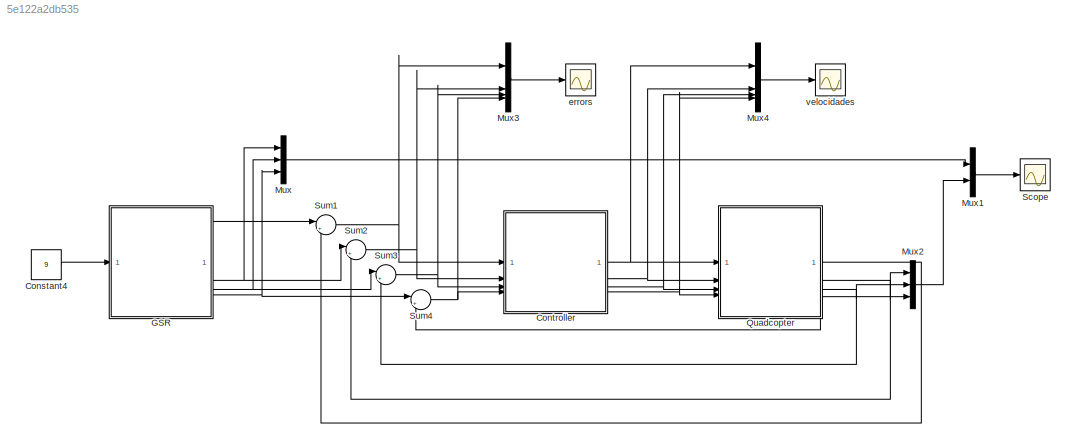
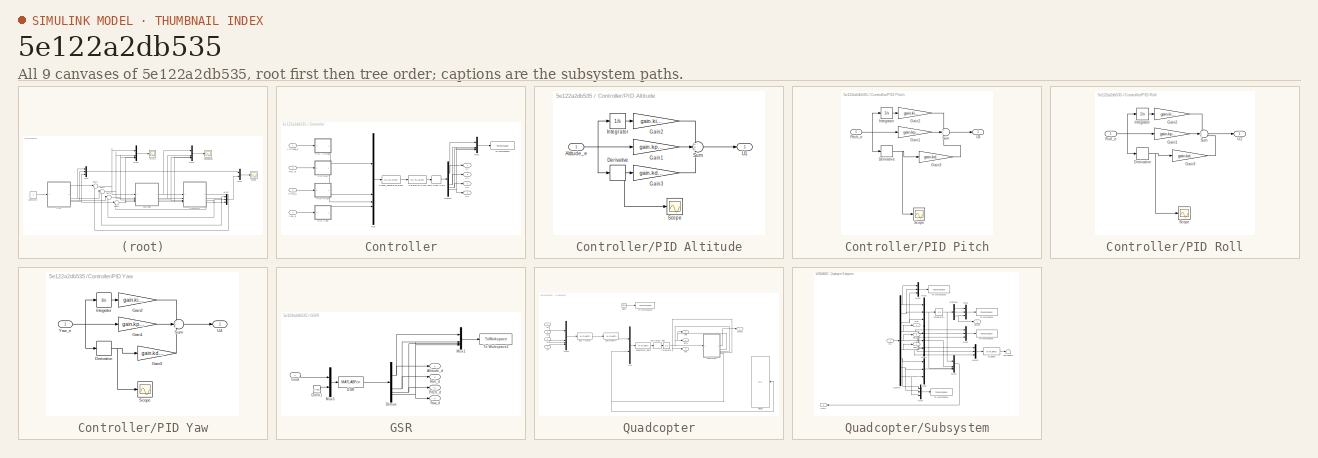
[diagram: thumbnail index - all 9 canvases of the model, root first then tree order]
MODEL slx_5e122a2db535
KIND model
CONFIG AbsTol = auto
CONFIG EnableMultiTasking = off
CONFIG FixedStep = step_size
CONFIG MaxStep = auto
CONFIG MinStep = auto
CONFIG RelTol = 1e-3
CONFIG SampleTimeConstraint = Unconstrained
CONFIG SolverName = FixedStepAuto
CONFIG StartTime = 0.0
CONFIG StopTime = 500
BLOCK [Constant] Constant4
  Value = 9
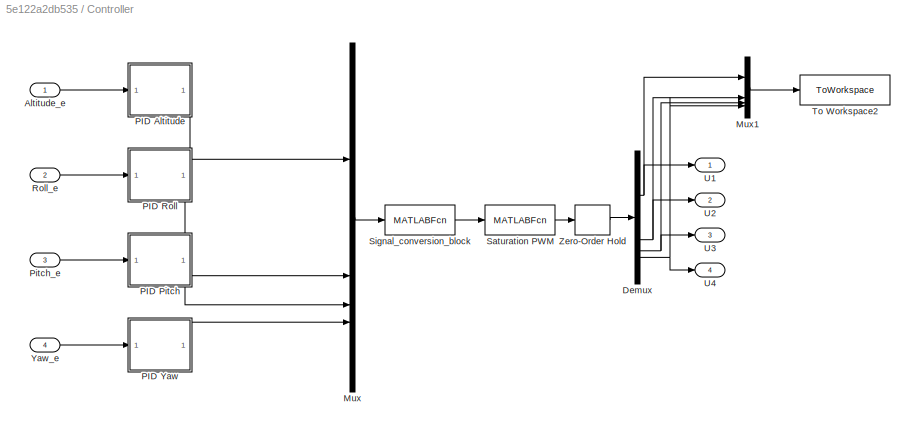
BLOCK [SubSystem] Controller
BLOCK [Inport] Controller/Altitude_e
BLOCK [Demux] Controller/Demux
BLOCK [Mux] Controller/Mux
  DisplayOption = bar
BLOCK [Mux] Controller/Mux1
  DisplayOption = bar
BLOCK [SubSystem] Controller/PID Altitude
BLOCK [Inport] Controller/PID Altitude/Altitude_e
BLOCK [Derivative] Controller/PID Altitude/Derivative
BLOCK [Gain] Controller/PID Altitude/Gain1
  Gain = gain.kp_a
BLOCK [Gain] Controller/PID Altitude/Gain2
  Gain = gain.ki_a
BLOCK [Gain] Controller/PID Altitude/Gain3
  Gain = gain.kd_a
BLOCK [Integrator] Controller/PID Altitude/Integrator
BLOCK [Scope] Controller/PID Altitude/Scope
  Floating = off
  NumInputPorts = 1
  ScopeSpecificationString = Simulink.scopes.TimeScopeBlockCfg('CurrentConfiguration', extmgr.ConfigurationSet(extmgr.Configuration('Core','General UI',true),extmgr.Configuration('Core','Source UI',true),extmgr.Configuration('Sources','WiredSimulink',true,'DataLoggingVariableName','ScopeData1'),extmgr.Configuration('Visuals','Time Domain',true,'SerializedDisplays',{struct('MinYLimReal','-0.50513','MaxYLimReal','0.94054','YLab...<+1369ch>
BLOCK [Sum] Controller/PID Altitude/Sum
  Inputs = +++
BLOCK [Outport] Controller/PID Altitude/U1
BLOCK [SubSystem] Controller/PID Pitch
BLOCK [Derivative] Controller/PID Pitch/Derivative
BLOCK [Gain] Controller/PID Pitch/Gain1
  Gain = gain.kp_p
BLOCK [Gain] Controller/PID Pitch/Gain2
  Gain = gain.ki_p
BLOCK [Gain] Controller/PID Pitch/Gain3
  Gain = gain.kd_p
BLOCK [Integrator] Controller/PID Pitch/Integrator
BLOCK [Inport] Controller/PID Pitch/Pitch_e
BLOCK [Scope] Controller/PID Pitch/Scope
  Floating = off
  NumInputPorts = 1
  ScopeSpecificationString = Simulink.scopes.TimeScopeBlockCfg('CurrentConfiguration', extmgr.ConfigurationSet(extmgr.Configuration('Core','General UI',true),extmgr.Configuration('Core','Source UI',true),extmgr.Configuration('Sources','WiredSimulink',true,'DataLoggingVariableName','ScopeData2'),extmgr.Configuration('Visuals','Time Domain',true,'SerializedDisplays',{struct('MinYLimReal','-1187.96218','MaxYLimReal','688.82626',...<+1389ch>
BLOCK [Sum] Controller/PID Pitch/Sum
  Inputs = +++
BLOCK [Outport] Controller/PID Pitch/U3
BLOCK [SubSystem] Controller/PID Roll
BLOCK [Derivative] Controller/PID Roll/Derivative
BLOCK [Gain] Controller/PID Roll/Gain1
  Gain = gain.kp_r
BLOCK [Gain] Controller/PID Roll/Gain2
  Gain = gain.ki_r
BLOCK [Gain] Controller/PID Roll/Gain3
  Gain = gain.kd_r
BLOCK [Integrator] Controller/PID Roll/Integrator
BLOCK [Inport] Controller/PID Roll/Roll_e
BLOCK [Scope] Controller/PID Roll/Scope
  Floating = off
  NumInputPorts = 1
  ScopeSpecificationString = Simulink.scopes.TimeScopeBlockCfg('CurrentConfiguration', extmgr.ConfigurationSet(extmgr.Configuration('Core','General UI',true),extmgr.Configuration('Core','Source UI',true),extmgr.Configuration('Sources','WiredSimulink',true,'DataLoggingVariableName','ScopeData1'),extmgr.Configuration('Visuals','Time Domain',true,'SerializedDisplays',{struct('MinYLimReal','-1187.9623','MaxYLimReal','688.82627','...<+1385ch>
BLOCK [Sum] Controller/PID Roll/Sum
  Inputs = +++
BLOCK [Outport] Controller/PID Roll/U2
BLOCK [SubSystem] Controller/PID Yaw
BLOCK [Derivative] Controller/PID Yaw/Derivative
BLOCK [Gain] Controller/PID Yaw/Gain1
  Gain = gain.kp_y
BLOCK [Gain] Controller/PID Yaw/Gain2
  Gain = gain.ki_y
BLOCK [Gain] Controller/PID Yaw/Gain3
  Gain = gain.kd_y
BLOCK [Integrator] Controller/PID Yaw/Integrator
BLOCK [Scope] Controller/PID Yaw/Scope
  Floating = off
  NumInputPorts = 1
  ScopeSpecificationString = Simulink.scopes.TimeScopeBlockCfg('CurrentConfiguration', extmgr.ConfigurationSet(extmgr.Configuration('Core','General UI',true),extmgr.Configuration('Core','Source UI',true),extmgr.Configuration('Sources','WiredSimulink',true,'DataLoggingVariableName','ScopeData3'),extmgr.Configuration('Visuals','Time Domain',true,'SerializedDisplays',{struct('MinYLimReal','-0.54501','MaxYLimReal','0.5769','YLabe...<+1413ch>
BLOCK [Sum] Controller/PID Yaw/Sum
  Inputs = +++
BLOCK [Outport] Controller/PID Yaw/U4
BLOCK [Inport] Controller/PID Yaw/Yaw_e
BLOCK [Inport] Controller/Pitch_e
  Port = 3
BLOCK [Inport] Controller/Roll_e
  Port = 2
BLOCK [MATLABFcn] Controller/Saturation PWM
  MATLABFcn = Saturation_PWM
  OutputDimensions = 4
BLOCK [MATLABFcn] Controller/Signal_conversion_block
  MATLABFcn = Signal_conversion_block
  OutputDimensions = 4
BLOCK [ToWorkspace] Controller/To Workspace2
  FixptAsFi = on
  MaxDataPoints = inf
  SampleTime = -1
  VariableName = pwm
BLOCK [Outport] Controller/U1
BLOCK [Outport] Controller/U2
  Port = 2
BLOCK [Outport] Controller/U3
  Port = 3
BLOCK [Outport] Controller/U4
  Port = 4
BLOCK [Inport] Controller/Yaw_e
  Port = 4
BLOCK [ZeroOrderHold] Controller/Zero-Order Hold
  SampleTime = -1
BLOCK [SubSystem] GSR
BLOCK [Outport] GSR/Altitude_d
BLOCK [Clock] GSR/Clock1
BLOCK [Demux] GSR/Demux
BLOCK [MATLABFcn] GSR/GSR
  MATLABFcn = GSR
  OutputDimensions = 4
BLOCK [Inport] GSR/Goal
BLOCK [Mux] GSR/Mux1
  DisplayOption = bar
BLOCK [Mux] GSR/Mux5
  DisplayOption = bar
  Inputs = 2
BLOCK [Outport] GSR/Pitch_d
  Port = 3
BLOCK [Outport] GSR/Roll_d
  Port = 2
BLOCK [ToWorkspace] GSR/To Workspace2
  FixptAsFi = on
  MaxDataPoints = inf
  SampleTime = -1
  VariableName = signals_d
BLOCK [Outport] GSR/Yaw_d
  Port = 4
BLOCK [Mux] Mux
  DisplayOption = bar
  Inputs = 3
BLOCK [Mux] Mux1
  DisplayOption = bar
  Inputs = 2
BLOCK [Mux] Mux2
  DisplayOption = bar
  Inputs = 3
BLOCK [Mux] Mux3
  DisplayOption = bar
BLOCK [Mux] Mux4
  DisplayOption = bar
BLOCK [SubSystem] Quadcopter
BLOCK [Outport] Quadcopter/Altitude
BLOCK [Clock] Quadcopter/Clock
BLOCK [Display] Quadcopter/Display
  Decimation = 1
  NameLocation = top
BLOCK [MATLABFcn] Quadcopter/ESC + Motor
  MATLABFcn = ESC_Motors
  OutputDimensions = 4
BLOCK [Integrator] Quadcopter/Integrator
  InitialCondition = [init.dx init.dy init.dz init.phi init.theta init.psi init.p init.q init.r]
BLOCK [Mux] Quadcopter/Mux
  DisplayOption = bar
  Inputs = 2
BLOCK [Mux] Quadcopter/Mux5
  DisplayOption = bar
BLOCK [Outport] Quadcopter/Pitch
  Port = 3
BLOCK [MATLABFcn] Quadcopter/Quadcopter_block
  MATLABFcn = Quadcopter_block
  OutputDimensions = 9
BLOCK [Outport] Quadcopter/Roll
  Port = 2
BLOCK [MATLABFcn] Quadcopter/Saturation F
  MATLABFcn = Saturation_F
  OutputDimensions = 4
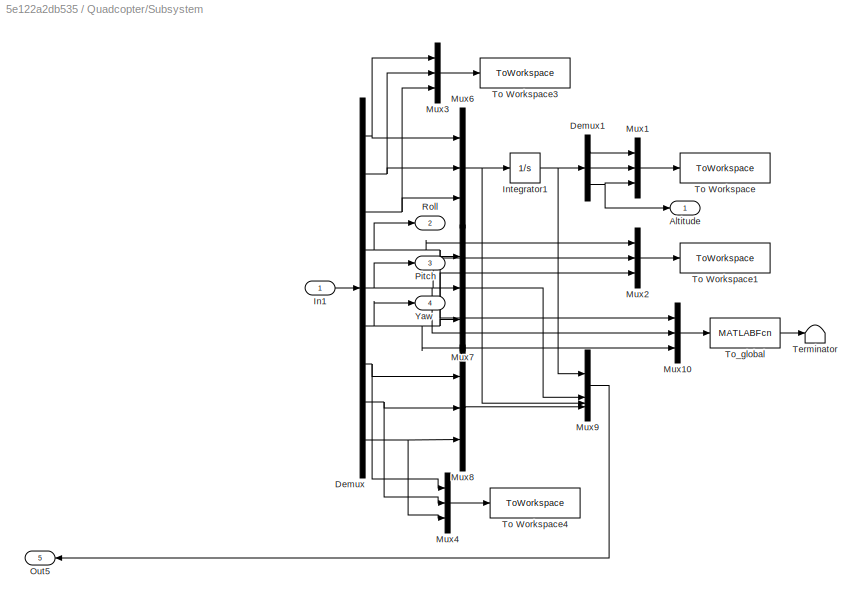
BLOCK [SubSystem] Quadcopter/Subsystem
BLOCK [Outport] Quadcopter/Subsystem/Altitude
BLOCK [Demux] Quadcopter/Subsystem/Demux
  Outputs = 9
BLOCK [Demux] Quadcopter/Subsystem/Demux1
  Outputs = 3
BLOCK [Inport] Quadcopter/Subsystem/In1
BLOCK [Integrator] Quadcopter/Subsystem/Integrator1
  InitialCondition = [init.x init.y init.z]
BLOCK [Mux] Quadcopter/Subsystem/Mux1
  DisplayOption = bar
  Inputs = 3
BLOCK [Mux] Quadcopter/Subsystem/Mux10
  DisplayOption = bar
  Inputs = 3
BLOCK [Mux] Quadcopter/Subsystem/Mux2
  DisplayOption = bar
  Inputs = 3
BLOCK [Mux] Quadcopter/Subsystem/Mux3
  DisplayOption = bar
  Inputs = 3
BLOCK [Mux] Quadcopter/Subsystem/Mux4
  DisplayOption = bar
  Inputs = 3
BLOCK [Mux] Quadcopter/Subsystem/Mux6
  DisplayOption = bar
  Inputs = 3
BLOCK [Mux] Quadcopter/Subsystem/Mux7
  DisplayOption = bar
  Inputs = 3
BLOCK [Mux] Quadcopter/Subsystem/Mux8
  DisplayOption = bar
  Inputs = 3
BLOCK [Mux] Quadcopter/Subsystem/Mux9
  DisplayOption = bar
BLOCK [Outport] Quadcopter/Subsystem/Out5
  Port = 5
BLOCK [Outport] Quadcopter/Subsystem/Pitch
  Port = 3
BLOCK [Outport] Quadcopter/Subsystem/Roll
  Port = 2
BLOCK [Terminator] Quadcopter/Subsystem/Terminator
BLOCK [ToWorkspace] Quadcopter/Subsystem/To Workspace
  FixptAsFi = on
  MaxDataPoints = inf
  SampleTime = -1
  VariableName = position
BLOCK [ToWorkspace] Quadcopter/Subsystem/To Workspace1
  FixptAsFi = on
  MaxDataPoints = inf
  SampleTime = -1
  VariableName = orientation
BLOCK [ToWorkspace] Quadcopter/Subsystem/To Workspace3
  FixptAsFi = on
  MaxDataPoints = inf
  SampleTime = -1
  VariableName = linear_velocity
BLOCK [ToWorkspace] Quadcopter/Subsystem/To Workspace4
  FixptAsFi = on
  MaxDataPoints = inf
  SampleTime = -1
  VariableName = angular_velocity
BLOCK [MATLABFcn] Quadcopter/Subsystem/To_global
  MATLABFcn = To_global
  OutputDimensions = 1
BLOCK [Outport] Quadcopter/Subsystem/Yaw
  Port = 4
BLOCK [ToWorkspace] Quadcopter/To Workspace2
  FixptAsFi = on
  MaxDataPoints = inf
  SampleTime = -1
  VariableName = time
BLOCK [Inport] Quadcopter/U1
BLOCK [Inport] Quadcopter/U2
  Port = 2
BLOCK [Inport] Quadcopter/U3
  Port = 3
BLOCK [Inport] Quadcopter/U4
  Port = 4
BLOCK [Outport] Quadcopter/Yaw
  Port = 4
BLOCK [ZeroOrderHold] Quadcopter/Zero-Order Hold
  SampleTime = -1
BLOCK [Scope] Scope
  Floating = off
  NumInputPorts = 1
  ScopeSpecificationString = Simulink.scopes.TimeScopeBlockCfg('CurrentConfiguration', extmgr.ConfigurationSet(extmgr.Configuration('Core','General UI',true),extmgr.Configuration('Core','Source UI',true),extmgr.Configuration('Sources','WiredSimulink',true),extmgr.Configuration('Visuals','Time Domain',true,'SerializedDisplays',{struct('MinYLimReal','-164.08693','MaxYLimReal','145.44735','YLabelReal','','MinYLimMag',' 0.00000',...<+1587ch>
BLOCK [Sum] Sum1
  Inputs = |+-
BLOCK [Sum] Sum2
  Inputs = |+-
BLOCK [Sum] Sum3
  Inputs = |+-
BLOCK [Sum] Sum4
  Inputs = |+-
BLOCK [Scope] errors
  Floating = off
  NumInputPorts = 1
  ScopeSpecificationString = Simulink.scopes.TimeScopeBlockCfg('CurrentConfiguration', extmgr.ConfigurationSet(extmgr.Configuration('Core','General UI',true),extmgr.Configuration('Core','Source UI',true),extmgr.Configuration('Sources','WiredSimulink',true,'DataLoggingVariableName','ScopeData1'),extmgr.Configuration('Visuals','Time Domain',true,'SerializedDisplays',{struct('MinYLimReal','-119.4498','MaxYLimReal','69.76333','YL...<+1558ch>
BLOCK [Scope] velocidades
  Floating = off
  NumInputPorts = 1
  ScopeSpecificationString = Simulink.scopes.TimeScopeBlockCfg('CurrentConfiguration', extmgr.ConfigurationSet(extmgr.Configuration('Core','General UI',true),extmgr.Configuration('Core','Source UI',true),extmgr.Configuration('Sources','WiredSimulink',true,'DataLoggingVariableName','ScopeData2'),extmgr.Configuration('Visuals','Time Domain',true,'SerializedDisplays',{struct('MinYLimReal','875.00000','MaxYLimReal','2125.00000','...<+1617ch>
LINE Constant4:1 -> GSR:1
LINE Controller/Altitude_e:1 -> Controller/PID Altitude:1
NET Controller/Demux:1 -> Controller/Mux1:1, Controller/U1:1
NET Controller/Demux:2 -> Controller/Mux1:2, Controller/U2:1
NET Controller/Demux:3 -> Controller/Mux1:3, Controller/U3:1
NET Controller/Demux:4 -> Controller/Mux1:4, Controller/U4:1
LINE Controller/Mux1:1 -> Controller/To Workspace2:1
LINE Controller/Mux:1 -> Controller/Signal_conversion_block:1
NET Controller/PID Altitude/Altitude_e:1 -> Controller/PID Altitude/Derivative:1, Controller/PID Altitude/Gain1:1, Controller/PID Altitude/Integrator:1
NET Controller/PID Altitude/Derivative:1 -> Controller/PID Altitude/Gain3:1, Controller/PID Altitude/Scope:1
LINE Controller/PID Altitude/Gain1:1 -> Controller/PID Altitude/Sum:2
LINE Controller/PID Altitude/Gain2:1 -> Controller/PID Altitude/Sum:1
LINE Controller/PID Altitude/Gain3:1 -> Controller/PID Altitude/Sum:3
LINE Controller/PID Altitude/Integrator:1 -> Controller/PID Altitude/Gain2:1
LINE Controller/PID Altitude/Sum:1 -> Controller/PID Altitude/U1:1
LINE Controller/PID Altitude:1 -> Controller/Mux:1
NET Controller/PID Pitch/Derivative:1 -> Controller/PID Pitch/Gain3:1, Controller/PID Pitch/Scope:1
LINE Controller/PID Pitch/Gain1:1 -> Controller/PID Pitch/Sum:2
LINE Controller/PID Pitch/Gain2:1 -> Controller/PID Pitch/Sum:1
LINE Controller/PID Pitch/Gain3:1 -> Controller/PID Pitch/Sum:3
LINE Controller/PID Pitch/Integrator:1 -> Controller/PID Pitch/Gain2:1
NET Controller/PID Pitch/Pitch_e:1 -> Controller/PID Pitch/Derivative:1, Controller/PID Pitch/Gain1:1, Controller/PID Pitch/Integrator:1
LINE Controller/PID Pitch/Sum:1 -> Controller/PID Pitch/U3:1
LINE Controller/PID Pitch:1 -> Controller/Mux:3
NET Controller/PID Roll/Derivative:1 -> Controller/PID Roll/Gain3:1, Controller/PID Roll/Scope:1
LINE Controller/PID Roll/Gain1:1 -> Controller/PID Roll/Sum:2
LINE Controller/PID Roll/Gain2:1 -> Controller/PID Roll/Sum:1
LINE Controller/PID Roll/Gain3:1 -> Controller/PID Roll/Sum:3
LINE Controller/PID Roll/Integrator:1 -> Controller/PID Roll/Gain2:1
NET Controller/PID Roll/Roll_e:1 -> Controller/PID Roll/Derivative:1, Controller/PID Roll/Gain1:1, Controller/PID Roll/Integrator:1
LINE Controller/PID Roll/Sum:1 -> Controller/PID Roll/U2:1
LINE Controller/PID Roll:1 -> Controller/Mux:2
NET Controller/PID Yaw/Derivative:1 -> Controller/PID Yaw/Gain3:1, Controller/PID Yaw/Scope:1
LINE Controller/PID Yaw/Gain1:1 -> Controller/PID Yaw/Sum:2
LINE Controller/PID Yaw/Gain2:1 -> Controller/PID Yaw/Sum:1
LINE Controller/PID Yaw/Gain3:1 -> Controller/PID Yaw/Sum:3
LINE Controller/PID Yaw/Integrator:1 -> Controller/PID Yaw/Gain2:1
LINE Controller/PID Yaw/Sum:1 -> Controller/PID Yaw/U4:1
NET Controller/PID Yaw/Yaw_e:1 -> Controller/PID Yaw/Derivative:1, Controller/PID Yaw/Gain1:1, Controller/PID Yaw/Integrator:1
LINE Controller/PID Yaw:1 -> Controller/Mux:4
LINE Controller/Pitch_e:1 -> Controller/PID Pitch:1
LINE Controller/Roll_e:1 -> Controller/PID Roll:1
LINE Controller/Saturation PWM:1 -> Controller/Zero-Order Hold:1
LINE Controller/Signal_conversion_block:1 -> Controller/Saturation PWM:1
LINE Controller/Yaw_e:1 -> Controller/PID Yaw:1
LINE Controller/Zero-Order Hold:1 -> Controller/Demux:1
NET Controller:1 -> Mux4:1, Quadcopter:1
NET Controller:2 -> Mux4:2, Quadcopter:2
NET Controller:3 -> Mux4:3, Quadcopter:3
NET Controller:4 -> Mux4:4, Quadcopter:4
LINE GSR/Clock1:1 -> GSR/Mux5:2
NET GSR/Demux:1 -> GSR/Altitude_d:1, GSR/Mux1:1
NET GSR/Demux:2 -> GSR/Mux1:2, GSR/Roll_d:1
NET GSR/Demux:3 -> GSR/Mux1:3, GSR/Pitch_d:1
NET GSR/Demux:4 -> GSR/Mux1:4, GSR/Yaw_d:1
LINE GSR/GSR:1 -> GSR/Demux:1
LINE GSR/Goal:1 -> GSR/Mux5:1
LINE GSR/Mux1:1 -> GSR/To Workspace2:1
LINE GSR/Mux5:1 -> GSR/GSR:1
LINE GSR:1 -> Sum1:1
NET GSR:2 -> Mux:1, Sum2:1
NET GSR:3 -> Mux:2, Sum3:1
NET GSR:4 -> Mux:3, Sum4:1
LINE Mux1:1 -> Scope:1
LINE Mux2:1 -> Mux1:2
LINE Mux3:1 -> errors:1
LINE Mux4:1 -> velocidades:1
LINE Mux:1 -> Mux1:1
LINE Quadcopter/Clock:1 -> Quadcopter/To Workspace2:1
LINE Quadcopter/ESC + Motor:1 -> Quadcopter/Saturation F:1
LINE Quadcopter/Integrator:1 -> Quadcopter/Subsystem:1
LINE Quadcopter/Mux5:1 -> Quadcopter/ESC + Motor:1
LINE Quadcopter/Mux:1 -> Quadcopter/Quadcopter_block:1
LINE Quadcopter/Quadcopter_block:1 -> Quadcopter/Zero-Order Hold:1
LINE Quadcopter/Saturation F:1 -> Quadcopter/Mux:1
LINE Quadcopter/Subsystem/Demux1:1 -> Quadcopter/Subsystem/Mux1:1
LINE Quadcopter/Subsystem/Demux1:2 -> Quadcopter/Subsystem/Mux1:2
NET Quadcopter/Subsystem/Demux1:3 -> Quadcopter/Subsystem/Altitude:1, Quadcopter/Subsystem/Mux1:3
NET Quadcopter/Subsystem/Demux:1 -> Quadcopter/Subsystem/Mux3:1, Quadcopter/Subsystem/Mux6:1
NET Quadcopter/Subsystem/Demux:2 -> Quadcopter/Subsystem/Mux3:2, Quadcopter/Subsystem/Mux6:2
NET Quadcopter/Subsystem/Demux:3 -> Quadcopter/Subsystem/Mux3:3, Quadcopter/Subsystem/Mux6:3
NET Quadcopter/Subsystem/Demux:4 -> Quadcopter/Subsystem/Mux10:1, Quadcopter/Subsystem/Mux2:1, Quadcopter/Subsystem/Mux7:1, Quadcopter/Subsystem/Roll:1
NET Quadcopter/Subsystem/Demux:5 -> Quadcopter/Subsystem/Mux10:2, Quadcopter/Subsystem/Mux2:2, Quadcopter/Subsystem/Mux7:2, Quadcopter/Subsystem/Pitch:1
NET Quadcopter/Subsystem/Demux:6 -> Quadcopter/Subsystem/Mux10:3, Quadcopter/Subsystem/Mux2:3, Quadcopter/Subsystem/Mux7:3, Quadcopter/Subsystem/Yaw:1
NET Quadcopter/Subsystem/Demux:7 -> Quadcopter/Subsystem/Mux4:1, Quadcopter/Subsystem/Mux8:1
NET Quadcopter/Subsystem/Demux:8 -> Quadcopter/Subsystem/Mux4:2, Quadcopter/Subsystem/Mux8:2
NET Quadcopter/Subsystem/Demux:9 -> Quadcopter/Subsystem/Mux4:3, Quadcopter/Subsystem/Mux8:3
LINE Quadcopter/Subsystem/In1:1 -> Quadcopter/Subsystem/Demux:1
NET Quadcopter/Subsystem/Integrator1:1 -> Quadcopter/Subsystem/Demux1:1, Quadcopter/Subsystem/Mux9:1
LINE Quadcopter/Subsystem/Mux10:1 -> Quadcopter/Subsystem/To_global:1
LINE Quadcopter/Subsystem/Mux1:1 -> Quadcopter/Subsystem/To Workspace:1
LINE Quadcopter/Subsystem/Mux2:1 -> Quadcopter/Subsystem/To Workspace1:1
LINE Quadcopter/Subsystem/Mux3:1 -> Quadcopter/Subsystem/To Workspace3:1
LINE Quadcopter/Subsystem/Mux4:1 -> Quadcopter/Subsystem/To Workspace4:1
NET Quadcopter/Subsystem/Mux6:1 -> Quadcopter/Subsystem/Integrator1:1, Quadcopter/Subsystem/Mux9:3
LINE Quadcopter/Subsystem/Mux7:1 -> Quadcopter/Subsystem/Mux9:2
LINE Quadcopter/Subsystem/Mux8:1 -> Quadcopter/Subsystem/Mux9:4
LINE Quadcopter/Subsystem/Mux9:1 -> Quadcopter/Subsystem/Out5:1
LINE Quadcopter/Subsystem/To_global:1 -> Quadcopter/Subsystem/Terminator:1
LINE Quadcopter/Subsystem:1 -> Quadcopter/Altitude:1
LINE Quadcopter/Subsystem:2 -> Quadcopter/Roll:1
LINE Quadcopter/Subsystem:3 -> Quadcopter/Pitch:1
LINE Quadcopter/Subsystem:4 -> Quadcopter/Yaw:1
NET Quadcopter/Subsystem:5 -> Quadcopter/Display:1, Quadcopter/Mux:2
LINE Quadcopter/U1:1 -> Quadcopter/Mux5:1
LINE Quadcopter/U2:1 -> Quadcopter/Mux5:2
LINE Quadcopter/U3:1 -> Quadcopter/Mux5:3
LINE Quadcopter/U4:1 -> Quadcopter/Mux5:4
LINE Quadcopter/Zero-Order Hold:1 -> Quadcopter/Integrator:1
LINE Quadcopter:1 -> Sum1:2
NET Quadcopter:2 -> Mux2:1, Sum2:2
NET Quadcopter:3 -> Mux2:2, Sum3:2
NET Quadcopter:4 -> Mux2:3, Sum4:2
NET Sum1:1 -> Controller:1, Mux3:1
NET Sum2:1 -> Controller:2, Mux3:2
NET Sum3:1 -> Controller:3, Mux3:3
NET Sum4:1 -> Controller:4, Mux3:4
note: NET lines group one-source signal fan-out (src -> all destinations, sorted); 1:1 wires keep LINE
